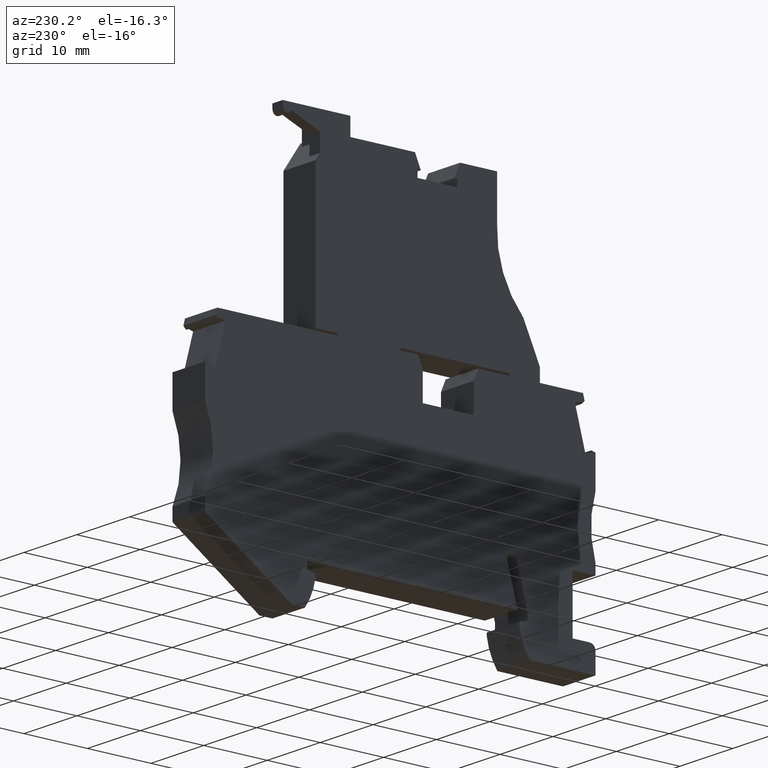
[diagram: clean part render]
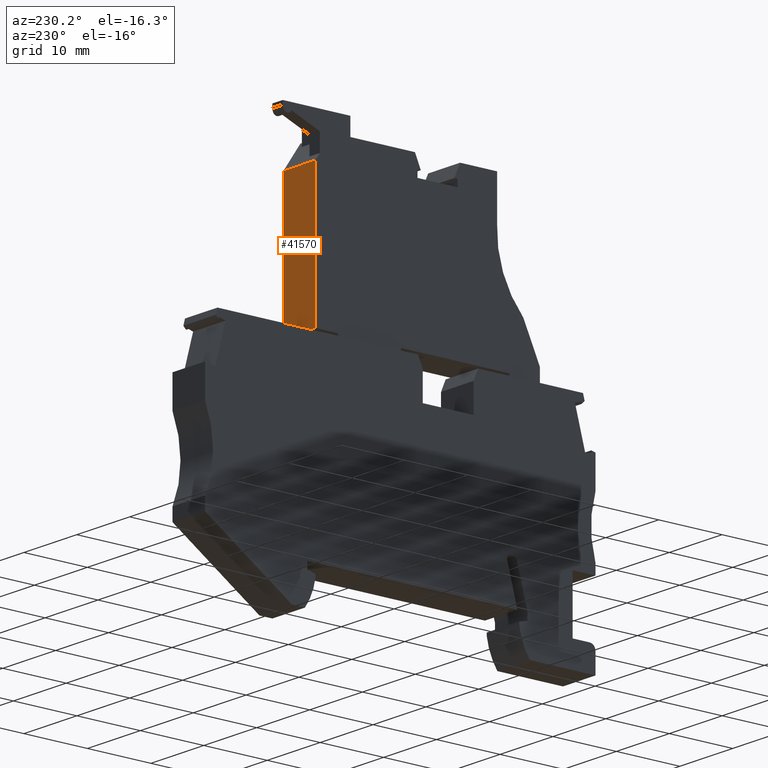
[diagram: same view with one face highlighted and labeled with its STEP entity id]
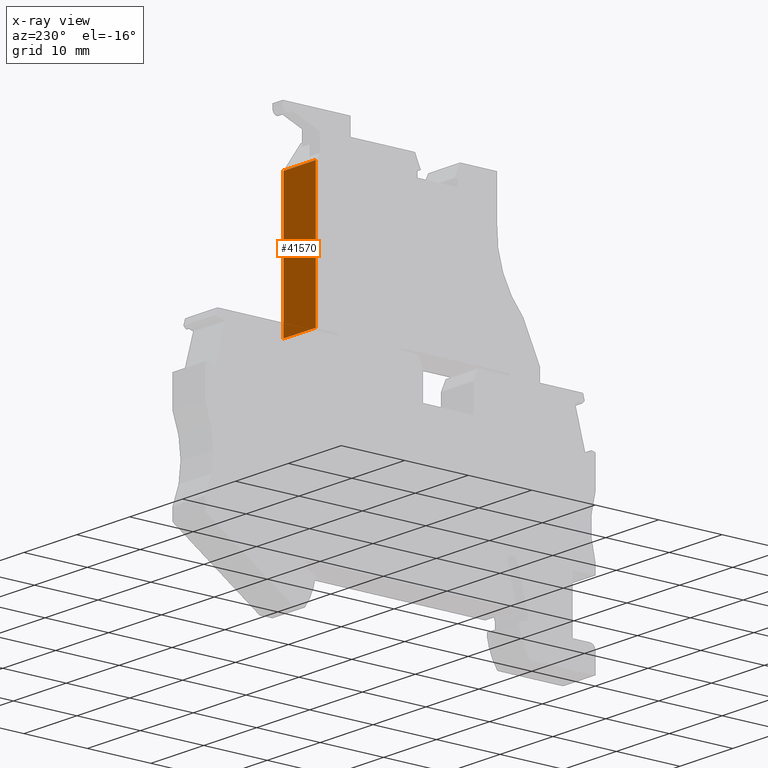
[diagram: x-ray of the same camera — body ghosted, the highlighted face saturated]
A machine part, auxiliary view. The second image highlights one B-rep face of the part: STEP entity #41570.
The next image is the same camera in x-ray: the body ghosted, the highlighted face saturated — about 0% of this face is hidden behind the body in this view.
In plain terms, the highlighted planar face has unit normal (-0, -1, 0).
Its self-contained STEP definition (entity closure, byte-faithful):
#36790=CARTESIAN_POINT('',(-3.45000000070586,40.5557951479074,
-5.0749999965275));
#36800=VERTEX_POINT('',#36790);
#36830=CARTESIAN_POINT('',(-3.45000000070586,40.5557951479074,
-1.7999999965275));
#36840=DIRECTION('',(0.,0.,1.));
#36850=VECTOR('',#36840,1.);
#36860=LINE('',#36830,#36850);
#36870=CARTESIAN_POINT('',(-3.45000000070586,40.5557951479074,
0.974999999999994));
#36880=VERTEX_POINT('',#36870);
#36890=EDGE_CURVE('',#36800,#36880,#36860,.T.);
#41270=CARTESIAN_POINT('',(-3.45000000070586,36.6579096113014,
-5.71801966155279));
#41280=DIRECTION('',(-1.,-1.22464679914735E-16,-0.));
#41290=DIRECTION('',(-1.22464679914735E-16,1.,0.));
#41300=AXIS2_PLACEMENT_3D('',#41270,#41280,#41290);
#41310=PLANE('',#41300);
#41320=CARTESIAN_POINT('',(-3.45000000070586,19.3999999905515,
-1.7999999965275));
#41330=DIRECTION('',(0.,0.,1.));
#41340=VECTOR('',#41330,1.);
#41350=LINE('',#41320,#41340);
#41360=CARTESIAN_POINT('',(-3.45000000070586,19.3999999905515,
-5.0749999965275));
#41370=VERTEX_POINT('',#41360);
#41380=CARTESIAN_POINT('',(-3.45000000070586,19.3999999905515,
0.974999999999994));
#41390=VERTEX_POINT('',#41380);
#41400=EDGE_CURVE('',#41370,#41390,#41350,.T.);
#41410=ORIENTED_EDGE('',*,*,#41400,.F.);
#41420=CARTESIAN_POINT('',(-3.45000000070585,-6.67785114815199,
0.974999999999994));
#41430=DIRECTION('',(-1.22464679914735E-16,1.,0.));
#41440=VECTOR('',#41430,1.);
#41450=LINE('',#41420,#41440);
#41460=EDGE_CURVE('',#41390,#36880,#41450,.T.);
#41470=ORIENTED_EDGE('',*,*,#41460,.F.);
#41480=ORIENTED_EDGE('',*,*,#36890,.T.);
#41490=CARTESIAN_POINT('',(-3.45000000070585,-6.67785114815199,
-5.0749999965275));
#41500=DIRECTION('',(1.22464679914735E-16,-1.,0.));
#41510=VECTOR('',#41500,1.);
#41520=LINE('',#41490,#41510);
#41530=EDGE_CURVE('',#36800,#41370,#41520,.T.);
#41540=ORIENTED_EDGE('',*,*,#41530,.F.);
#41550=EDGE_LOOP('',(#41540,#41480,#41470,#41410));
#41560=FACE_OUTER_BOUND('',#41550,.T.);
#41570=ADVANCED_FACE('',(#41560),#41310,.F.);